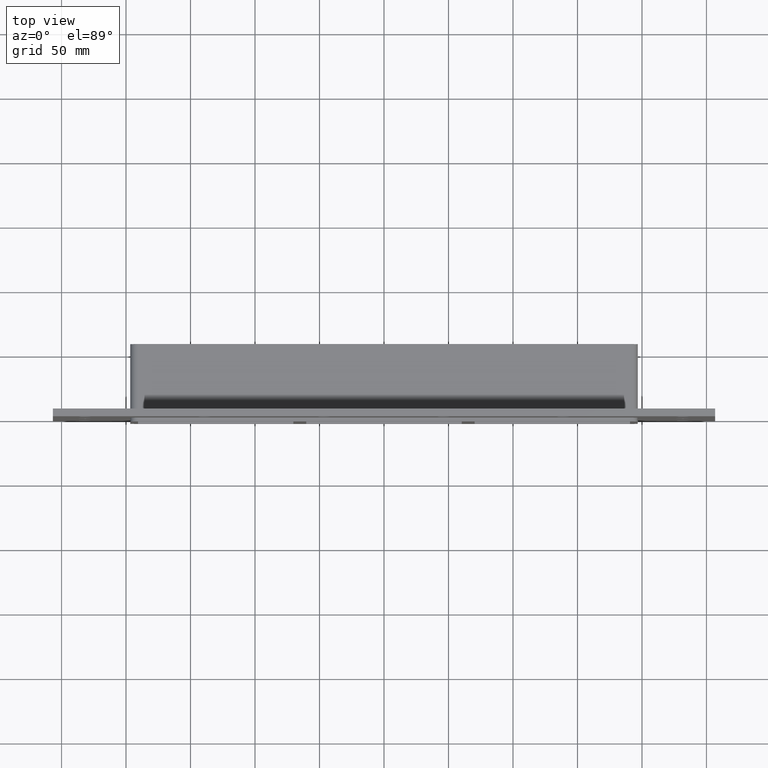
[diagram: clean part render]
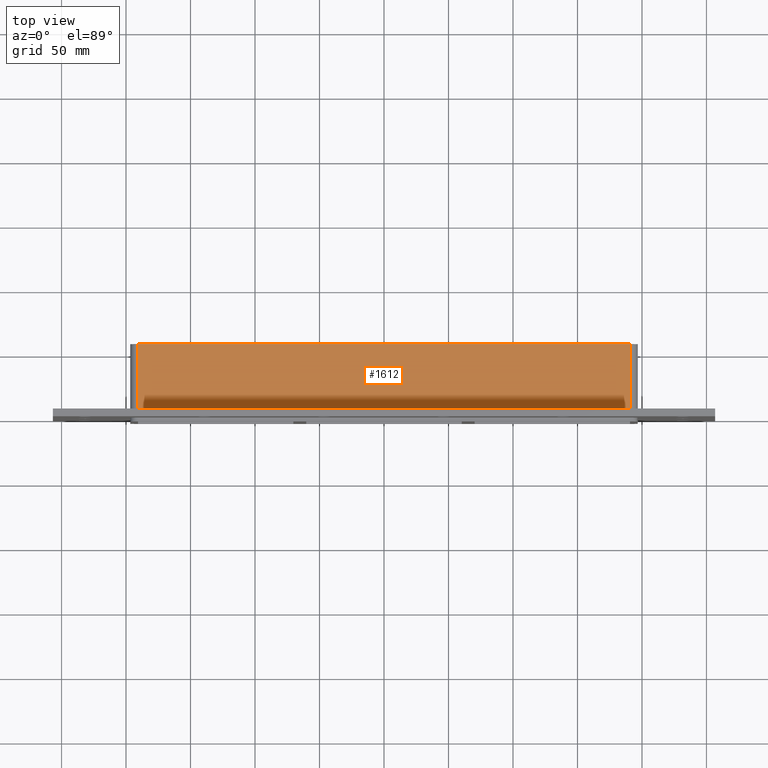
[diagram: same view with one face highlighted and labeled with its STEP entity id]
A machine part, top view. The second image highlights one B-rep face of the part: STEP entity #1612.
In plain terms, the highlighted planar face has unit normal (0, 0, 1).
Its self-contained STEP definition (entity closure, byte-faithful):
#905=CARTESIAN_POINT('',(190.75000000000003,6.000000000000001,56.499999999999986));
#906=VERTEX_POINT('',#905);
#914=CARTESIAN_POINT('',(-190.75000000000003,6.000000000000001,56.499999999999986));
#915=VERTEX_POINT('',#914);
#916=CARTESIAN_POINT('',(-190.75000000000003,6.000000000000001,56.499999999999986));
#917=DIRECTION('',(1.0,0.0,0.0));
#918=VECTOR('',#917,381.50000000000011);
#919=LINE('',#916,#918);
#920=EDGE_CURVE('',#915,#906,#919,.T.);
#1228=CARTESIAN_POINT('',(190.75000000000003,57.0,56.499999999999986));
#1229=VERTEX_POINT('',#1228);
#1237=CARTESIAN_POINT('',(190.75000000000003,57.0,56.499999999999986));
#1238=DIRECTION('',(0.0,-1.0,0.0));
#1239=VECTOR('',#1238,51.0);
#1240=LINE('',#1237,#1239);
#1241=EDGE_CURVE('',#1229,#906,#1240,.T.);
#1577=CARTESIAN_POINT('',(-190.75000000000003,57.0,56.499999999999986));
#1578=VERTEX_POINT('',#1577);
#1579=CARTESIAN_POINT('',(-190.75000000000003,6.000000000000001,56.499999999999986));
#1580=DIRECTION('',(0.0,1.0,0.0));
#1581=VECTOR('',#1580,51.0);
#1582=LINE('',#1579,#1581);
#1583=EDGE_CURVE('',#915,#1578,#1582,.T.);
#1596=CARTESIAN_POINT('',(-196.75000000000006,0.0,56.499999999999986));
#1597=DIRECTION('',(0.0,0.0,1.0));
#1598=DIRECTION('',(1.0,0.0,0.0));
#1599=AXIS2_PLACEMENT_3D('',#1596,#1597,#1598);
#1600=PLANE('',#1599);
#1601=ORIENTED_EDGE('',*,*,#920,.T.);
#1602=ORIENTED_EDGE('',*,*,#1241,.F.);
#1603=CARTESIAN_POINT('',(-190.75000000000006,57.0,56.499999999999986));
#1604=DIRECTION('',(1.0,0.0,0.0));
#1605=VECTOR('',#1604,381.50000000000006);
#1606=LINE('',#1603,#1605);
#1607=EDGE_CURVE('',#1578,#1229,#1606,.T.);
#1608=ORIENTED_EDGE('',*,*,#1607,.F.);
#1609=ORIENTED_EDGE('',*,*,#1583,.F.);
#1610=EDGE_LOOP('',(#1601,#1602,#1608,#1609));
#1611=FACE_OUTER_BOUND('',#1610,.T.);
#1612=ADVANCED_FACE('',(#1611),#1600,.T.);